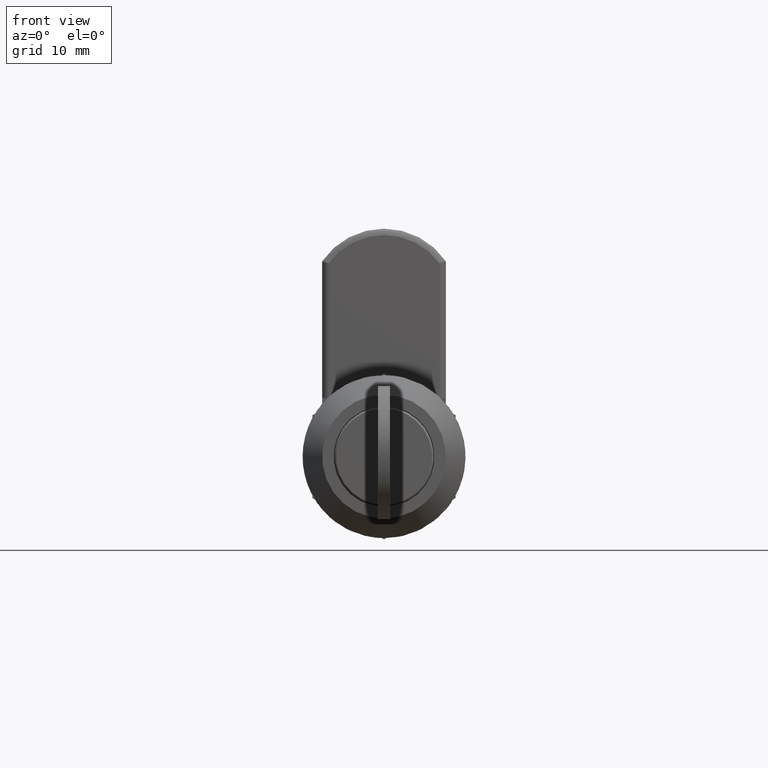
[diagram: clean part render]
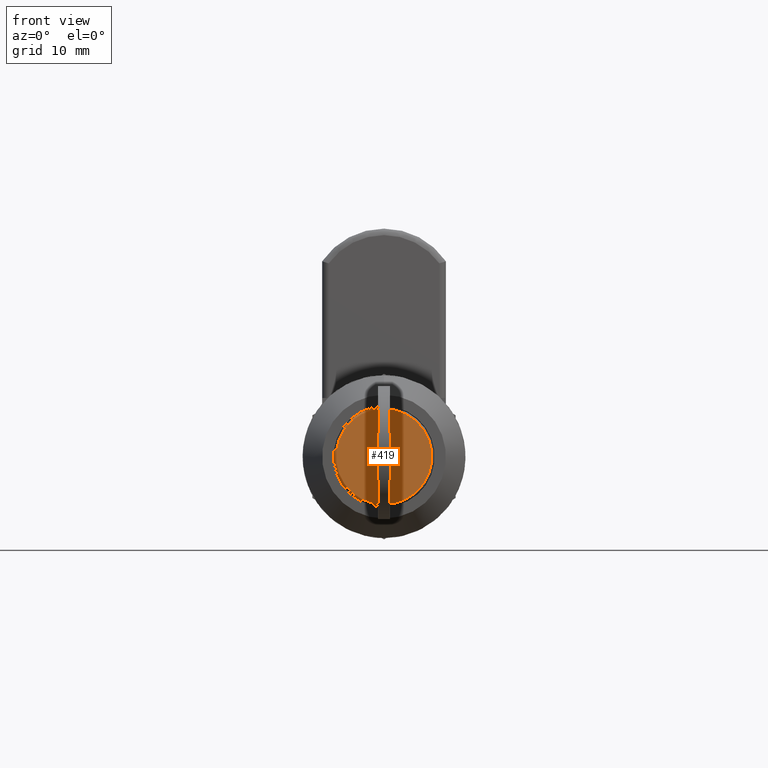
[diagram: same view with one face highlighted and labeled with its STEP entity id]
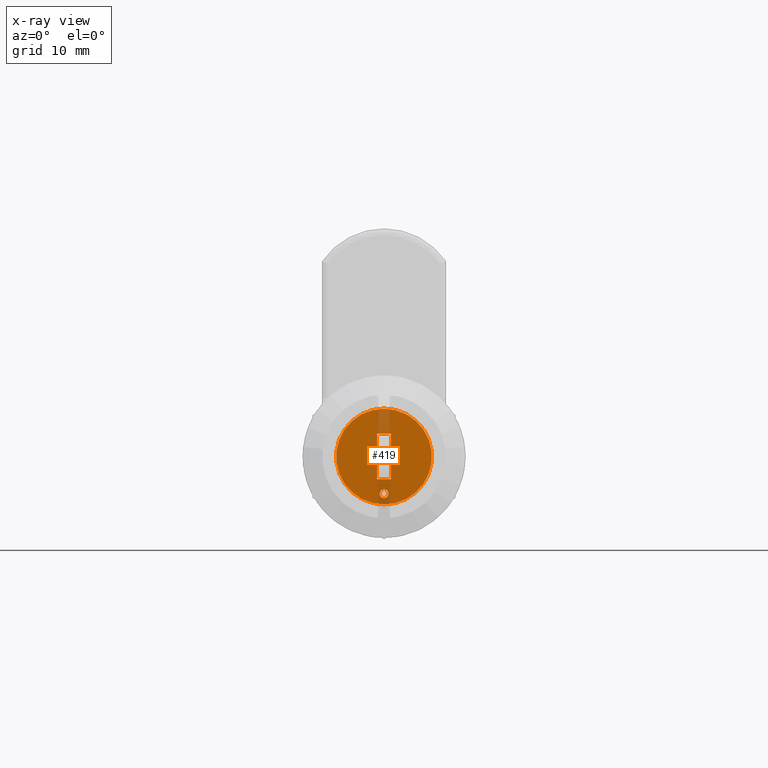
[diagram: x-ray of the same camera — body ghosted, the highlighted face saturated]
A machine part, front view. The second image highlights one B-rep face of the part: STEP entity #419.
The next image is the same camera in x-ray: the body ghosted, the highlighted face saturated — about 8% of this face is hidden behind the body in this view.
In plain terms, the highlighted planar face has unit normal (0, -1, 0).
Its self-contained STEP definition (entity closure, byte-faithful):
#419=ADVANCED_FACE('',(#1004,#1005,#1006),#1003,.T.);
#1003=PLANE('',#2281);
#1004=FACE_OUTER_BOUND('',#2282,.T.);
#1005=FACE_BOUND('',#2283,.T.);
#1006=FACE_BOUND('',#2284,.T.);
#2278=CARTESIAN_POINT('',(1.52766881228E+01,1.13686837722E-13,9.55500000000E+00));
#2279=DIRECTION('',(-0.00000000000E+00,-1.00000000000E+00,0.00000000000E+00));
#2280=DIRECTION('',(-1.00000000000E+00,0.00000000000E+00,9.88370844097E-16));
#2281=AXIS2_PLACEMENT_3D('',#2278,#2279,#2280);
#2282=EDGE_LOOP('',(#4013,#4014));
#2283=EDGE_LOOP('',(#4015,#4016));
#2284=EDGE_LOOP('',(#4017,#4018,#4019,#4020));
#4013=ORIENTED_EDGE('',*,*,#4638,.T.);
#4014=ORIENTED_EDGE('',*,*,#4639,.T.);
#4015=ORIENTED_EDGE('',*,*,#4640,.T.);
#4016=ORIENTED_EDGE('',*,*,#4641,.T.);
#4017=ORIENTED_EDGE('',*,*,#4642,.T.);
#4018=ORIENTED_EDGE('',*,*,#4643,.T.);
#4019=ORIENTED_EDGE('',*,*,#4644,.T.);
#4020=ORIENTED_EDGE('',*,*,#4645,.T.);
#4638=EDGE_CURVE('',#5703,#5704,#5705,.T.);
#4639=EDGE_CURVE('',#5704,#5703,#5711,.T.);
#4640=EDGE_CURVE('',#5717,#5718,#5719,.T.);
#4641=EDGE_CURVE('',#5718,#5717,#5725,.T.);
#4642=EDGE_CURVE('',#5731,#5732,#5733,.T.);
#4643=EDGE_CURVE('',#5732,#5739,#5740,.T.);
#4644=EDGE_CURVE('',#5739,#5746,#5747,.T.);
#4645=EDGE_CURVE('',#5746,#5731,#5753,.T.);
#5703=VERTEX_POINT('',#7855);
#5704=VERTEX_POINT('',#7856);
#5705=CIRCLE('',#7860,7.35000000000E+00);
#5711=CIRCLE('',#7864,7.35000000000E+00);
#5717=VERTEX_POINT('',#7865);
#5718=VERTEX_POINT('',#7866);
#5719=CIRCLE('',#7870,6.87386354243E-01);
#5725=CIRCLE('',#7874,6.87386354243E-01);
#5731=VERTEX_POINT('',#7875);
#5732=VERTEX_POINT('',#7876);
#5733=LINE('',#7877,#7878);
#5739=VERTEX_POINT('',#7880);
#5740=LINE('',#7881,#7882);
#5746=VERTEX_POINT('',#7884);
#5747=LINE('',#7885,#7886);
#5753=LINE('',#7888,#7889);
#7855=CARTESIAN_POINT('',(3.52214562539E-15,2.27373675443E-13,7.35000000000E+00));
#7856=CARTESIAN_POINT('',(-8.88178419700E-16,2.27373675443E-13,-7.35000000000E+00));
#7857=CARTESIAN_POINT('',(5.16667111871E-16,2.27373675443E-13,-1.14430536734E-30));
#7858=DIRECTION('',(-2.42855573549E-30,-1.00000000000E+00,2.85264574298E-45));
#7859=DIRECTION('',(1.17462642561E-15,-0.00000000000E+00,1.00000000000E+00));
#7860=AXIS2_PLACEMENT_3D('',#7857,#7858,#7859);
#7861=CARTESIAN_POINT('',(5.16667111871E-16,2.27373675443E-13,-1.14430536734E-30));
#7862=DIRECTION('',(-2.42855573549E-30,-1.00000000000E+00,2.85264574298E-45));
#7863=DIRECTION('',(1.17462642561E-15,-0.00000000000E+00,1.00000000000E+00));
#7864=AXIS2_PLACEMENT_3D('',#7861,#7862,#7863);
#7865=CARTESIAN_POINT('',(-3.99802700474E-15,1.13678597785E-13,-6.38738635424E+00));
#7866=CARTESIAN_POINT('',(-3.58898096427E-13,1.13678597785E-13,-5.01261364576E+00));
#7867=CARTESIAN_POINT('',(-7.51874079984E-15,1.13678597785E-13,-5.70000000000E+00));
#7868=DIRECTION('',(0.00000000000E+00,1.00000000000E+00,0.00000000000E+00));
#7869=DIRECTION('',(4.99942427456E-15,0.00000000000E+00,-1.00000000000E+00));
#7870=AXIS2_PLACEMENT_3D('',#7867,#7868,#7869);
#7871=CARTESIAN_POINT('',(-7.51874079984E-15,1.13678597785E-13,-5.70000000000E+00));
#7872=DIRECTION('',(0.00000000000E+00,1.00000000000E+00,0.00000000000E+00));
#7873=DIRECTION('',(4.99942427456E-15,0.00000000000E+00,-1.00000000000E+00));
#7874=AXIS2_PLACEMENT_3D('',#7871,#7872,#7873);
#7875=CARTESIAN_POINT('',(-1.05000000000E+00,1.13686837722E-13,3.50000000000E+00));
#7876=CARTESIAN_POINT('',(1.05000000000E+00,1.11022302463E-13,3.50000000000E+00));
#7877=CARTESIAN_POINT('',(-1.05000000000E+00,1.13686837722E-13,3.50000000000E+00));
#7878=VECTOR('',#7879,2.10000000000E+00);
#7879=DIRECTION('',(1.00000000000E+00,-1.26882631381E-15,0.00000000000E+00));
#7880=CARTESIAN_POINT('',(1.05000000000E+00,1.11022302463E-13,-3.50000000000E+00));
#7881=CARTESIAN_POINT('',(1.05000000000E+00,1.11022302463E-13,3.50000000000E+00));
#7882=VECTOR('',#7883,7.00000000000E+00);
#7883=DIRECTION('',(0.00000000000E+00,0.00000000000E+00,-1.00000000000E+00));
#7884=CARTESIAN_POINT('',(-1.05000000000E+00,1.11022302463E-13,-3.50000000000E+00));
#7885=CARTESIAN_POINT('',(1.05000000000E+00,1.11022302463E-13,-3.50000000000E+00));
#7886=VECTOR('',#7887,2.10000000000E+00);
#7887=DIRECTION('',(-1.00000000000E+00,0.00000000000E+00,0.00000000000E+00));
#7888=CARTESIAN_POINT('',(-1.05000000000E+00,1.11022302463E-13,-3.50000000000E+00));
#7889=VECTOR('',#7890,7.00000000000E+00);
#7890=DIRECTION('',(0.00000000000E+00,3.80647894143E-16,1.00000000000E+00));